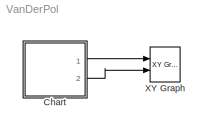
MODEL VanDerPol
KIND model
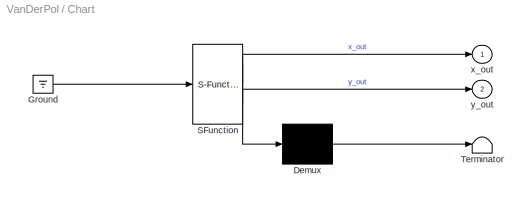
BLOCK [SubSystem] Chart
  ErrorFcn = Stateflow.Translate.translate
  FunctionWithSeparateData = off
  MaskDescription = Stateflow diagram
  MaskDisplay = plot(sf('Private','sfblk','xIcon'),sf('Private','sfblk','yIcon'));text(0.5,0,sf('Private', 'sfblk', 'tIcon'),'HorizontalAl','Center','VerticalAl','Bottom');
  MaskHideContents = off
  MaskIconFrame = off
  MaskIconOpaque = off
  MaskIconRotate = none
  MaskIconUnits = normalized
  MaskPortRotate = default
  MaskSelfModifiable = on
  MaskType = Stateflow
  MinAlgLoopOccurrences = off
  Opaque = off
  PermitHierarchicalResolution = ExplicitOnly
  Ports = [0, 2]
  PropExecContextOutsideSubsystem = off
  RTWSystemCode = Auto
  RequestExecContextInheritance = off
  SFBlockType = Chart
  SID = 1
  TreatAsAtomicUnit = on
BLOCK [Demux] Chart/ Demux 
  Outputs = 1
  Ports = [1, 1]
  SID = 1::26
BLOCK [Ground] Chart/ Ground 
  SID = 1::27
BLOCK [S-Function] Chart/ SFunction 
  EnableBusSupport = on
  FunctionName = sf_sfun
  PortCounts = [1 3]
  Ports = [1, 3]
  SID = 1::25
  Tag = Stateflow S-Function VanDerPol 1
BLOCK [Terminator] Chart/ Terminator 
  SID = 1::28
BLOCK [Outport] Chart/x_out
  IconDisplay = Port number
  SID = 1::29
BLOCK [Outport] Chart/y_out
  IconDisplay = Port number
  Port = 2
  SID = 1::30
BLOCK [Reference] XY Graph  REF=simulink/Sinks/XY Graph
  Ports = [2]
  SID = 2
  SourceBlock = simulink/Sinks/XY Graph
  SourceType = XY scope.
  st = 0.01
  xmax = 5
  xmin = -5
  ymax = 5
  ymin = -5
LINE Chart/ Demux :1 -> Chart/ Terminator :1
LINE Chart/ Ground :1 -> Chart/ SFunction :1
LINE Chart/ SFunction :1 -> Chart/ Demux :1
LINE Chart/ SFunction :2 -> Chart/x_out:1
LINE Chart/ SFunction :3 -> Chart/y_out:1
LINE Chart:1 -> XY Graph:1
LINE Chart:2 -> XY Graph:2
CHART Chart states=2 transitions=1
  STATE_LABEL 'VO\\ndu:\\nx_dot = y;\\ny_dot = -y - x - x*x*y;\\nx_out = x;\\ny_out = y;'
  STATE_LABEL '@annotation-mode=VO;\\nk=2000;\\ngamma=0;'
